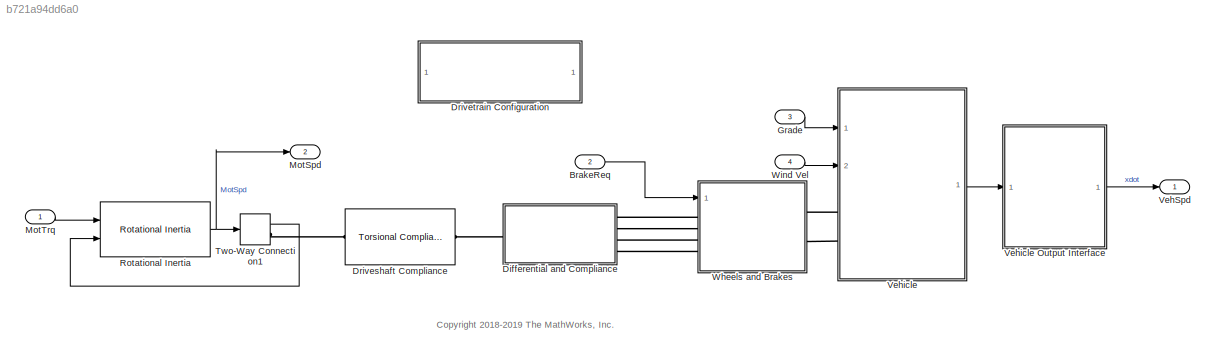
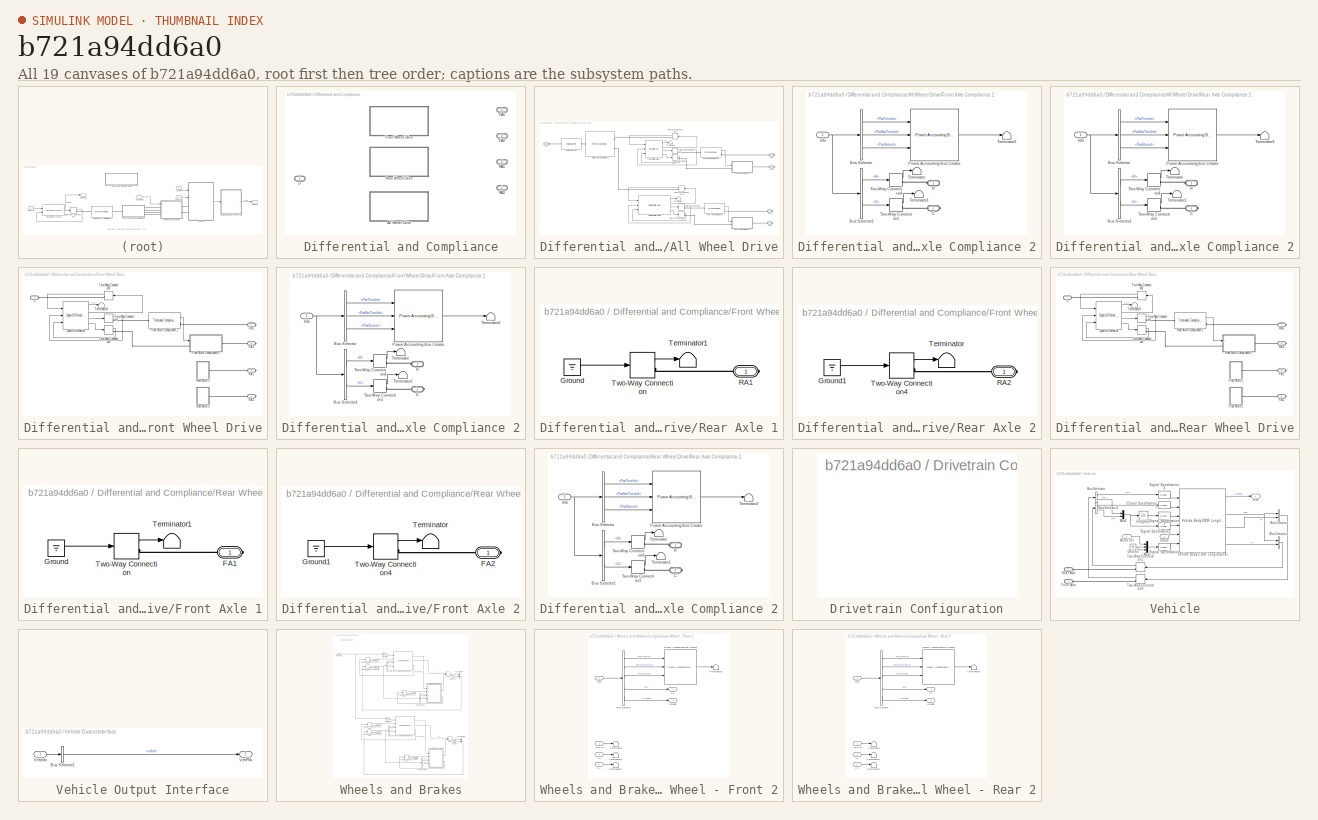
[diagram: thumbnail index - all 19 canvases of the model, root first then tree order]
MODEL slx_b721a94dd6a0
KIND model
CONFIG AbsTol = auto
CONFIG EnableMultiTasking = off
CONFIG FixedStep = auto
CONFIG MaxStep = auto
CONFIG MinStep = auto
CONFIG RelTol = 1e-3
CONFIG SampleTimeConstraint = Unconstrained
CONFIG Solver = VariableStepAuto
CONFIG SolverName = VariableStepAuto
CONFIG StartTime = 0.0
CONFIG StopTime = 10.0
WORKSPACE source: mxarray member
WORKSPACE Af = 2.27
WORKSPACE Bx = 10
WORKSPACE Cd = 0.28
WORKSPACE Cl = 0.1
WORKSPACE Cpm = 0.1
WORKSPACE Cx = 1.65
WORKSPACE Dx = 1
WORKSPACE Ex = 0.01
WORKSPACE FZMAX = 6570
WORKSPACE FZMIN = 0
WORKSPACE Fc = 500
WORKSPACE FsbF = [-700000 -7000 -700 0 700 7000 700000]
WORKSPACE FsbR = [-700000 -7000 -700 0 700 7000 700000]
WORKSPACE FskF = [-8928.57142857 -178.571428571 0 357.142857143 535.714285714 9285.71428571]
WORKSPACE FskR = [-5357.14285714 -107.142857143 0 214.285714286 321.428571429 5571.42857143]
WORKSPACE Iyy = 3000
WORKSPACE Iyy_Whl = 0.8
WORKSPACE J = 0.01
WORKSPACE Jd = 0.025
WORKSPACE Jmotor = 0.1
WORKSPACE Jw1 = 0.01
WORKSPACE Jw2 = 0.01
WORKSPACE Lrel = 0.15
WORKSPACE Mass = 1500
WORKSPACE NF = 2
WORKSPACE NR = 2
WORKSPACE Ndiff = 7.94
WORKSPACE Ndisks = 4
WORKSPACE Pabs = 101325
WORKSPACE Re = 0.327
WORKSPACE Reff_LSD = 0.2
WORKSPACE Rm = 0.15
WORKSPACE T = 273
WORKSPACE UNLOADED_RADIUS = 0.336
WORKSPACE VXLOW = 2
WORKSPACE aMy = 0.01
WORKSPACE a_CG = 1.188
WORKSPACE alphaMy = 0
WORKSPACE b: Simulink.Parameter (value not decoded)
WORKSPACE b1 = 100
WORKSPACE bMy = 0
WORKSPACE b_CG = 1.512
WORKSPACE b_J = 0.001
WORKSPACE bd = 0.001
WORKSPACE betaMy = 1
WORKSPACE br = 0.001
WORKSPACE bw1 = 0.001
WORKSPACE bw2 = 0.001
WORKSPACE cMy = 0
WORKSPACE disk_abore = 0.05
WORKSPACE domega_o = 0
WORKSPACE dw = [0 10 20 40 60 80 100]
WORKSPACE dzdotsF = [-10 -1 -0.1 0 0.1 1 10]
WORKSPACE dzdotsR = [-10 -1 -0.1 0 0.1 1 10]
WORKSPACE dzsF = [-0.005 -0.0001 0 0.2 0.2001 0.2051]
WORKSPACE dzsR = [-0.005 -0.0001 0 0.2 0.2001 0.2051]
WORKSPACE g = 9.81
WORKSPACE h = 0.5
WORKSPACE k: Simulink.Parameter (value not decoded)
WORKSPACE k1 = 50000
WORKSPACE kappamax = 1.5
WORKSPACE lam_x = 1
WORKSPACE mu_kinetic = 0.35
WORKSPACE mu_static = 0.45
WORKSPACE muc = [0.16 0.13 0.115 0.11 0.105 0.1025 0.10125]
WORKSPACE num_pads = 2
WORKSPACE omega1_c = 3000
WORKSPACE omega_c: Simulink.Parameter (value not decoded)
WORKSPACE omega_o = 0
WORKSPACE omega_o_J = 0
WORKSPACE omegao = 0
WORKSPACE omegaw1o = 0
WORKSPACE omegaw2o = 0
WORKSPACE press = 234400
WORKSPACE q_o = 0
WORKSPACE tauC_LSD = 0.01
WORKSPACE theta_o = 0
WORKSPACE theta_o_Veh = 0
WORKSPACE wc_shaft: Simulink.Parameter (value not decoded)
WORKSPACE x_o = 0
WORKSPACE xdot_o = 0
WORKSPACE z_o = -0.35
WORKSPACE zdot_o = 0
BLOCK [Inport] BrakeReq
  Port = 2
BLOCK [SubSystem] Differential and Compliance
  LabelModeActiveChoice = 0
  Ports = [0, 0, 0, 0, 0, 1, 4]
  RequestExecContextInheritance = off
  Variant = on
  VariantControlMode = Label
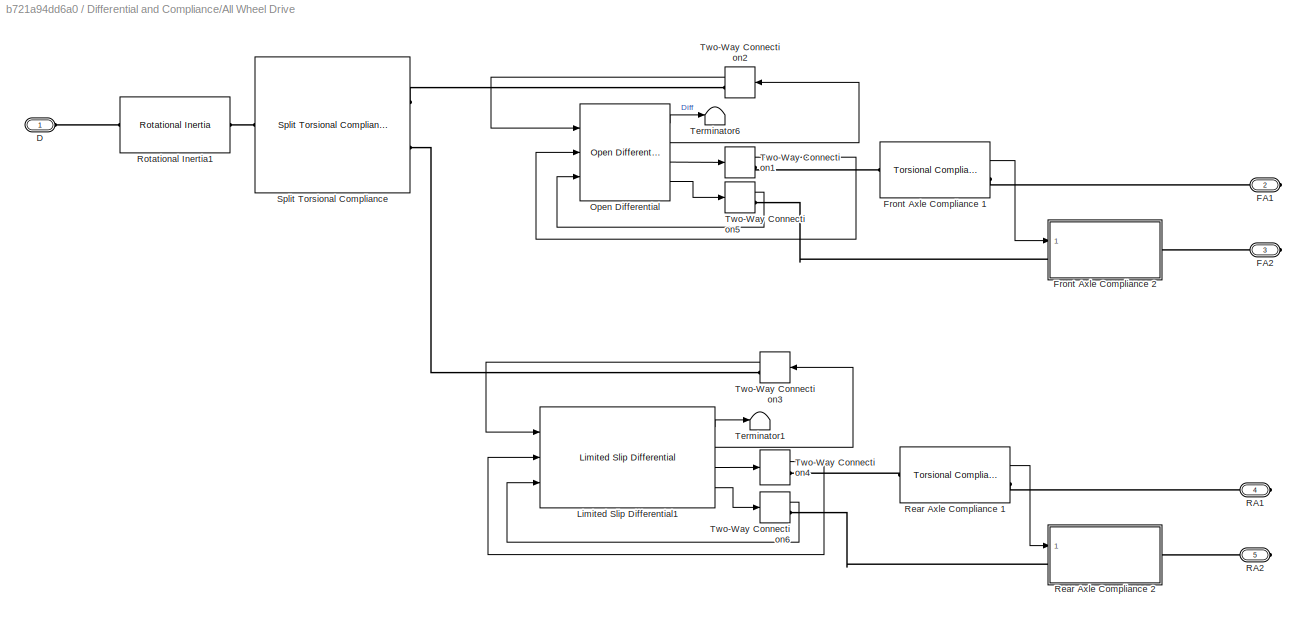
BLOCK [SubSystem] Differential and Compliance/All Wheel Drive
  Ports = [0, 0, 0, 0, 0, 1, 4]
  RequestExecContextInheritance = off
  VariantControl = 2
BLOCK [PMIOPort] Differential and Compliance/All Wheel Drive/D
  Side = Left
BLOCK [PMIOPort] Differential and Compliance/All Wheel Drive/FA1
  Port = 2
  Side = Right
BLOCK [PMIOPort] Differential and Compliance/All Wheel Drive/FA2
  Port = 3
  Side = Right
BLOCK [Reference] Differential and Compliance/All Wheel Drive/Front Axle Compliance 1  REF=autolibsharedcoupling/Torsional Compliance
  Ports = [0, 1, 0, 0, 0, 1, 1]
  SourceBlock = autolibsharedcoupling/Torsional Compliance
  SourceProductBaseCode = PW,MT,VE,VP
  SourceType = Torsional Compliance
BLOCK [SubSystem] Differential and Compliance/All Wheel Drive/Front Axle Compliance 2
  Ports = [1, 0, 0, 0, 0, 1, 1]
  RequestExecContextInheritance = off
BLOCK [BusSelector] Differential and Compliance/All Wheel Drive/Front Axle Compliance 2/Bus Selector
  OutputSignals = PwrInfo.PwrTrnsfrd,PwrInfo.PwrNotTrnsfrd,PwrInfo.PwrStored
  Ports = [1, 3]
BLOCK [BusSelector] Differential and Compliance/All Wheel Drive/Front Axle Compliance 2/Bus Selector1
  OutputSignals = Trq.R,Trq.C
  Ports = [1, 2]
BLOCK [PMIOPort] Differential and Compliance/All Wheel Drive/Front Axle Compliance 2/C
  Port = 2
  Side = Right
BLOCK [Inport] Differential and Compliance/All Wheel Drive/Front Axle Compliance 2/Info
BLOCK [Reference] Differential and Compliance/All Wheel Drive/Front Axle Compliance 2/Power Accounting Bus Creator  REF=autolibpowerinfoutils/Power Accounting Bus Creator
  Ports = [3, 1]
  SourceBlock = autolibpowerinfoutils/Power Accounting Bus Creator
  SourceProductBaseCode = PW,MT,VE,VP
  SourceType = Power Accounting Bus Creator
BLOCK [PMIOPort] Differential and Compliance/All Wheel Drive/Front Axle Compliance 2/R
  Side = Left
BLOCK [Terminator] Differential and Compliance/All Wheel Drive/Front Axle Compliance 2/Terminator
BLOCK [Terminator] Differential and Compliance/All Wheel Drive/Front Axle Compliance 2/Terminator1
BLOCK [Terminator] Differential and Compliance/All Wheel Drive/Front Axle Compliance 2/Terminator2
BLOCK [TwoWayConnection] Differential and Compliance/All Wheel Drive/Front Axle Compliance 2/Two-Way Connection1
  Ports = [1, 1, 0, 0, 0, 0, 1]
BLOCK [TwoWayConnection] Differential and Compliance/All Wheel Drive/Front Axle Compliance 2/Two-Way Connection4
  Ports = [1, 1, 0, 0, 0, 0, 1]
BLOCK [Reference] Differential and Compliance/All Wheel Drive/Limited Slip Differential1  REF=autolibshareddiff/Limited Slip Differential
  Ports = [3, 4]
  SourceBlock = autolibshareddiff/Limited Slip Differential
  SourceProductBaseCode = PW,MT,VE,VP
  SourceType = Limited Slip Differential
BLOCK [Reference] Differential and Compliance/All Wheel Drive/Open Differential  REF=autolibshareddiff/Open Differential
  Ports = [3, 4]
  SourceBlock = autolibshareddiff/Open Differential
  SourceProductBaseCode = PW,MT,VE,VP
  SourceType = Open Differential
BLOCK [PMIOPort] Differential and Compliance/All Wheel Drive/RA1
  Port = 4
  Side = Right
BLOCK [PMIOPort] Differential and Compliance/All Wheel Drive/RA2
  Port = 5
  Side = Right
BLOCK [Reference] Differential and Compliance/All Wheel Drive/Rear Axle Compliance 1  REF=autolibsharedcoupling/Torsional Compliance
  Ports = [0, 1, 0, 0, 0, 1, 1]
  SourceBlock = autolibsharedcoupling/Torsional Compliance
  SourceProductBaseCode = PW,MT,VE,VP
  SourceType = Torsional Compliance
BLOCK [SubSystem] Differential and Compliance/All Wheel Drive/Rear Axle Compliance 2
  Ports = [1, 0, 0, 0, 0, 1, 1]
  RequestExecContextInheritance = off
BLOCK [BusSelector] Differential and Compliance/All Wheel Drive/Rear Axle Compliance 2/Bus Selector
  OutputSignals = PwrInfo.PwrTrnsfrd,PwrInfo.PwrNotTrnsfrd,PwrInfo.PwrStored
  Ports = [1, 3]
BLOCK [BusSelector] Differential and Compliance/All Wheel Drive/Rear Axle Compliance 2/Bus Selector1
  OutputSignals = Trq.R,Trq.C
  Ports = [1, 2]
BLOCK [PMIOPort] Differential and Compliance/All Wheel Drive/Rear Axle Compliance 2/C
  Port = 2
  Side = Right
BLOCK [Inport] Differential and Compliance/All Wheel Drive/Rear Axle Compliance 2/Info
BLOCK [Reference] Differential and Compliance/All Wheel Drive/Rear Axle Compliance 2/Power Accounting Bus Creator  REF=autolibpowerinfoutils/Power Accounting Bus Creator
  Ports = [3, 1]
  SourceBlock = autolibpowerinfoutils/Power Accounting Bus Creator
  SourceProductBaseCode = PW,MT,VE,VP
  SourceType = Power Accounting Bus Creator
BLOCK [PMIOPort] Differential and Compliance/All Wheel Drive/Rear Axle Compliance 2/R
  Side = Left
BLOCK [Terminator] Differential and Compliance/All Wheel Drive/Rear Axle Compliance 2/Terminator
BLOCK [Terminator] Differential and Compliance/All Wheel Drive/Rear Axle Compliance 2/Terminator1
BLOCK [Terminator] Differential and Compliance/All Wheel Drive/Rear Axle Compliance 2/Terminator2
BLOCK [TwoWayConnection] Differential and Compliance/All Wheel Drive/Rear Axle Compliance 2/Two-Way Connection1
  Ports = [1, 1, 0, 0, 0, 0, 1]
BLOCK [TwoWayConnection] Differential and Compliance/All Wheel Drive/Rear Axle Compliance 2/Two-Way Connection4
  Ports = [1, 1, 0, 0, 0, 0, 1]
BLOCK [Reference] Differential and Compliance/All Wheel Drive/Rotational Inertia1  REF=autolibsharedcoupling/Rotational Inertia
  Ports = [0, 0, 0, 0, 0, 1, 1]
  SourceBlock = autolibsharedcoupling/Rotational Inertia
  SourceProductBaseCode = PW,MT,VE,VP
  SourceType = Rotational Inertia
BLOCK [Reference] Differential and Compliance/All Wheel Drive/Split Torsional Compliance  REF=autolibsharedcoupling/Split Torsional Compliance
  Ports = [0, 0, 0, 0, 0, 1, 2]
  SourceBlock = autolibsharedcoupling/Split Torsional Compliance
  SourceProductBaseCode = PW,MT,VE,VP
  SourceType = Split Torsional Compliance
BLOCK [Terminator] Differential and Compliance/All Wheel Drive/Terminator1
BLOCK [Terminator] Differential and Compliance/All Wheel Drive/Terminator6
BLOCK [TwoWayConnection] Differential and Compliance/All Wheel Drive/Two-Way Connection1
  Ports = [1, 1, 0, 0, 0, 0, 1]
BLOCK [TwoWayConnection] Differential and Compliance/All Wheel Drive/Two-Way Connection2
  Ports = [1, 1, 0, 0, 0, 0, 1]
BLOCK [TwoWayConnection] Differential and Compliance/All Wheel Drive/Two-Way Connection3
  Ports = [1, 1, 0, 0, 0, 0, 1]
BLOCK [TwoWayConnection] Differential and Compliance/All Wheel Drive/Two-Way Connection4
  NameLocation = top
  Ports = [1, 1, 0, 0, 0, 0, 1]
BLOCK [TwoWayConnection] Differential and Compliance/All Wheel Drive/Two-Way Connection5
  Ports = [1, 1, 0, 0, 0, 0, 1]
BLOCK [TwoWayConnection] Differential and Compliance/All Wheel Drive/Two-Way Connection6
  Ports = [1, 1, 0, 0, 0, 0, 1]
BLOCK [PMIOPort] Differential and Compliance/D
  Side = Left
BLOCK [PMIOPort] Differential and Compliance/FA1
  Port = 2
  Side = Right
BLOCK [PMIOPort] Differential and Compliance/FA2
  Port = 3
  Side = Right
BLOCK [SubSystem] Differential and Compliance/Front Wheel Drive
  Ports = [0, 0, 0, 0, 0, 1, 4]
  RequestExecContextInheritance = off
  VariantControl = 0
BLOCK [PMIOPort] Differential and Compliance/Front Wheel Drive/D
  Side = Left
BLOCK [PMIOPort] Differential and Compliance/Front Wheel Drive/FA1
  Port = 2
  Side = Right
BLOCK [PMIOPort] Differential and Compliance/Front Wheel Drive/FA2
  Port = 3
  Side = Right
BLOCK [Reference] Differential and Compliance/Front Wheel Drive/Front Axle Compliance 1  REF=autolibsharedcoupling/Torsional Compliance
  Ports = [0, 1, 0, 0, 0, 1, 1]
  SourceBlock = autolibsharedcoupling/Torsional Compliance
  SourceProductBaseCode = PW,MT,VE,VP
  SourceType = Torsional Compliance
BLOCK [SubSystem] Differential and Compliance/Front Wheel Drive/Front Axle Compliance 2
  Ports = [1, 0, 0, 0, 0, 1, 1]
  RequestExecContextInheritance = off
BLOCK [BusSelector] Differential and Compliance/Front Wheel Drive/Front Axle Compliance 2/Bus Selector
  OutputSignals = PwrInfo.PwrTrnsfrd,PwrInfo.PwrNotTrnsfrd,PwrInfo.PwrStored
  Ports = [1, 3]
BLOCK [BusSelector] Differential and Compliance/Front Wheel Drive/Front Axle Compliance 2/Bus Selector1
  OutputSignals = Trq.R,Trq.C
  Ports = [1, 2]
BLOCK [PMIOPort] Differential and Compliance/Front Wheel Drive/Front Axle Compliance 2/C
  Port = 2
  Side = Right
BLOCK [Inport] Differential and Compliance/Front Wheel Drive/Front Axle Compliance 2/Info
BLOCK [Reference] Differential and Compliance/Front Wheel Drive/Front Axle Compliance 2/Power Accounting Bus Creator  REF=autolibpowerinfoutils/Power Accounting Bus Creator
  Ports = [3, 1]
  SourceBlock = autolibpowerinfoutils/Power Accounting Bus Creator
  SourceProductBaseCode = PW,MT,VE,VP
  SourceType = Power Accounting Bus Creator
BLOCK [PMIOPort] Differential and Compliance/Front Wheel Drive/Front Axle Compliance 2/R
  Side = Left
BLOCK [Terminator] Differential and Compliance/Front Wheel Drive/Front Axle Compliance 2/Terminator
BLOCK [Terminator] Differential and Compliance/Front Wheel Drive/Front Axle Compliance 2/Terminator1
BLOCK [Terminator] Differential and Compliance/Front Wheel Drive/Front Axle Compliance 2/Terminator2
BLOCK [TwoWayConnection] Differential and Compliance/Front Wheel Drive/Front Axle Compliance 2/Two-Way Connection1
  Ports = [1, 1, 0, 0, 0, 0, 1]
BLOCK [TwoWayConnection] Differential and Compliance/Front Wheel Drive/Front Axle Compliance 2/Two-Way Connection4
  Ports = [1, 1, 0, 0, 0, 0, 1]
BLOCK [Reference] Differential and Compliance/Front Wheel Drive/Open Differential  REF=autolibshareddiff/Open Differential
  Ports = [3, 4]
  SourceBlock = autolibshareddiff/Open Differential
  SourceProductBaseCode = PW,MT,VE,VP
  SourceType = Open Differential
BLOCK [PMIOPort] Differential and Compliance/Front Wheel Drive/RA1
  Port = 4
  Side = Right
BLOCK [PMIOPort] Differential and Compliance/Front Wheel Drive/RA2
  Port = 5
  Side = Right
BLOCK [SubSystem] Differential and Compliance/Front Wheel Drive/Rear Axle 1
  Ports = [0, 0, 0, 0, 0, 0, 1]
  RequestExecContextInheritance = off
BLOCK [Ground] Differential and Compliance/Front Wheel Drive/Rear Axle 1/Ground
BLOCK [PMIOPort] Differential and Compliance/Front Wheel Drive/Rear Axle 1/RA1
  Side = Right
BLOCK [Terminator] Differential and Compliance/Front Wheel Drive/Rear Axle 1/Terminator1
BLOCK [TwoWayConnection] Differential and Compliance/Front Wheel Drive/Rear Axle 1/Two-Way Connection
  Ports = [1, 1, 0, 0, 0, 0, 1]
BLOCK [SubSystem] Differential and Compliance/Front Wheel Drive/Rear Axle 2
  Ports = [0, 0, 0, 0, 0, 0, 1]
  RequestExecContextInheritance = off
BLOCK [Ground] Differential and Compliance/Front Wheel Drive/Rear Axle 2/Ground1
BLOCK [PMIOPort] Differential and Compliance/Front Wheel Drive/Rear Axle 2/RA2
  Side = Right
BLOCK [Terminator] Differential and Compliance/Front Wheel Drive/Rear Axle 2/Terminator
BLOCK [TwoWayConnection] Differential and Compliance/Front Wheel Drive/Rear Axle 2/Two-Way Connection4
  Ports = [1, 1, 0, 0, 0, 0, 1]
BLOCK [Terminator] Differential and Compliance/Front Wheel Drive/Terminator6
BLOCK [TwoWayConnection] Differential and Compliance/Front Wheel Drive/Two-Way Connection1
  Ports = [1, 1, 0, 0, 0, 0, 1]
BLOCK [TwoWayConnection] Differential and Compliance/Front Wheel Drive/Two-Way Connection2
  Ports = [1, 1, 0, 0, 0, 0, 1]
BLOCK [TwoWayConnection] Differential and Compliance/Front Wheel Drive/Two-Way Connection3
  Ports = [1, 1, 0, 0, 0, 0, 1]
BLOCK [PMIOPort] Differential and Compliance/RA1
  Port = 4
  Side = Right
BLOCK [PMIOPort] Differential and Compliance/RA2
  Port = 5
  Side = Right
BLOCK [SubSystem] Differential and Compliance/Rear Wheel Drive
  Ports = [0, 0, 0, 0, 0, 1, 4]
  RequestExecContextInheritance = off
  VariantControl = 1
BLOCK [PMIOPort] Differential and Compliance/Rear Wheel Drive/D
  Side = Left
BLOCK [PMIOPort] Differential and Compliance/Rear Wheel Drive/FA1
  Port = 2
  Side = Right
BLOCK [PMIOPort] Differential and Compliance/Rear Wheel Drive/FA2
  Port = 3
  Side = Right
BLOCK [SubSystem] Differential and Compliance/Rear Wheel Drive/Front Axle 1
  Ports = [0, 0, 0, 0, 0, 0, 1]
  RequestExecContextInheritance = off
BLOCK [PMIOPort] Differential and Compliance/Rear Wheel Drive/Front Axle 1/FA1
  Side = Right
BLOCK [Ground] Differential and Compliance/Rear Wheel Drive/Front Axle 1/Ground
BLOCK [Terminator] Differential and Compliance/Rear Wheel Drive/Front Axle 1/Terminator1
BLOCK [TwoWayConnection] Differential and Compliance/Rear Wheel Drive/Front Axle 1/Two-Way Connection
  Ports = [1, 1, 0, 0, 0, 0, 1]
BLOCK [SubSystem] Differential and Compliance/Rear Wheel Drive/Front Axle 2
  Ports = [0, 0, 0, 0, 0, 0, 1]
  RequestExecContextInheritance = off
BLOCK [PMIOPort] Differential and Compliance/Rear Wheel Drive/Front Axle 2/FA2
  Side = Right
BLOCK [Ground] Differential and Compliance/Rear Wheel Drive/Front Axle 2/Ground1
BLOCK [Terminator] Differential and Compliance/Rear Wheel Drive/Front Axle 2/Terminator
BLOCK [TwoWayConnection] Differential and Compliance/Rear Wheel Drive/Front Axle 2/Two-Way Connection4
  Ports = [1, 1, 0, 0, 0, 0, 1]
BLOCK [Reference] Differential and Compliance/Rear Wheel Drive/Open Differential  REF=autolibshareddiff/Open Differential
  Ports = [3, 4]
  SourceBlock = autolibshareddiff/Open Differential
  SourceProductBaseCode = PW,MT,VE,VP
  SourceType = Open Differential
BLOCK [PMIOPort] Differential and Compliance/Rear Wheel Drive/RA1
  Port = 4
  Side = Right
BLOCK [PMIOPort] Differential and Compliance/Rear Wheel Drive/RA2
  Port = 5
  Side = Right
BLOCK [Reference] Differential and Compliance/Rear Wheel Drive/Rear Axle Compliance 1  REF=autolibsharedcoupling/Torsional Compliance
  Ports = [0, 1, 0, 0, 0, 1, 1]
  SourceBlock = autolibsharedcoupling/Torsional Compliance
  SourceProductBaseCode = PW,MT,VE,VP
  SourceType = Torsional Compliance
BLOCK [SubSystem] Differential and Compliance/Rear Wheel Drive/Rear Axle Compliance 2
  Ports = [1, 0, 0, 0, 0, 1, 1]
  RequestExecContextInheritance = off
BLOCK [BusSelector] Differential and Compliance/Rear Wheel Drive/Rear Axle Compliance 2/Bus Selector
  OutputSignals = PwrInfo.PwrTrnsfrd,PwrInfo.PwrNotTrnsfrd,PwrInfo.PwrStored
  Ports = [1, 3]
BLOCK [BusSelector] Differential and Compliance/Rear Wheel Drive/Rear Axle Compliance 2/Bus Selector1
  OutputSignals = Trq.R,Trq.C
  Ports = [1, 2]
BLOCK [PMIOPort] Differential and Compliance/Rear Wheel Drive/Rear Axle Compliance 2/C
  Port = 2
  Side = Right
BLOCK [Inport] Differential and Compliance/Rear Wheel Drive/Rear Axle Compliance 2/Info
BLOCK [Reference] Differential and Compliance/Rear Wheel Drive/Rear Axle Compliance 2/Power Accounting Bus Creator  REF=autolibpowerinfoutils/Power Accounting Bus Creator
  Ports = [3, 1]
  SourceBlock = autolibpowerinfoutils/Power Accounting Bus Creator
  SourceProductBaseCode = PW,MT,VE,VP
  SourceType = Power Accounting Bus Creator
BLOCK [PMIOPort] Differential and Compliance/Rear Wheel Drive/Rear Axle Compliance 2/R
  Side = Left
BLOCK [Terminator] Differential and Compliance/Rear Wheel Drive/Rear Axle Compliance 2/Terminator
BLOCK [Terminator] Differential and Compliance/Rear Wheel Drive/Rear Axle Compliance 2/Terminator1
BLOCK [Terminator] Differential and Compliance/Rear Wheel Drive/Rear Axle Compliance 2/Terminator2
BLOCK [TwoWayConnection] Differential and Compliance/Rear Wheel Drive/Rear Axle Compliance 2/Two-Way Connection1
  Ports = [1, 1, 0, 0, 0, 0, 1]
BLOCK [TwoWayConnection] Differential and Compliance/Rear Wheel Drive/Rear Axle Compliance 2/Two-Way Connection4
  Ports = [1, 1, 0, 0, 0, 0, 1]
BLOCK [Terminator] Differential and Compliance/Rear Wheel Drive/Terminator6
BLOCK [TwoWayConnection] Differential and Compliance/Rear Wheel Drive/Two-Way Connection1
  Ports = [1, 1, 0, 0, 0, 0, 1]
BLOCK [TwoWayConnection] Differential and Compliance/Rear Wheel Drive/Two-Way Connection2
  Ports = [1, 1, 0, 0, 0, 0, 1]
BLOCK [TwoWayConnection] Differential and Compliance/Rear Wheel Drive/Two-Way Connection3
  Ports = [1, 1, 0, 0, 0, 0, 1]
BLOCK [Reference] Driveshaft Compliance  REF=autolibsharedcoupling/Torsional Compliance
  Ports = [0, 0, 0, 0, 0, 1, 1]
  SourceBlock = autolibsharedcoupling/Torsional Compliance
  SourceProductBaseCode = PW,MT,VE,VP
  SourceType = Torsional Compliance
BLOCK [SubSystem] Drivetrain Configuration
  AttributesFormatString = Active Mode: %<drivetrainMode>
  Ports = []
  RequestExecContextInheritance = off
BLOCK [Inport] Grade
  Port = 3
BLOCK [Outport] MotSpd
  BusOutputAsStruct = on
  Port = 2
  SignalType = real
  VarSizeSig = No
  VectorParamsAs1DForOutWhenUnconnected = off
BLOCK [Inport] MotTrq
BLOCK [Reference] Rotational Inertia  REF=autolibsharedcoupling/Rotational Inertia
  Ports = [2, 1]
  SourceBlock = autolibsharedcoupling/Rotational Inertia
  SourceProductBaseCode = PW,MT,VE,VP
  SourceType = Rotational Inertia
BLOCK [TwoWayConnection] Two-Way Connection1
  NameLocation = top
  Ports = [1, 1, 0, 0, 0, 0, 1]
BLOCK [Outport] VehSpd
  VectorParamsAs1DForOutWhenUnconnected = off
BLOCK [SubSystem] Vehicle
  Ports = [2, 1, 0, 0, 0, 2]
  RequestExecContextInheritance = off
BLOCK [SubSystem] Vehicle Output Interface
  Ports = [1, 1]
  RequestExecContextInheritance = off
BLOCK [BusSelector] Vehicle Output Interface/Bus Selector1
  OutputSignals = BdyFrm.Cg.Vel.xdot
  Ports = [1, 1]
BLOCK [Outport] Vehicle Output Interface/VehFbk
  VectorParamsAs1DForOutWhenUnconnected = off
BLOCK [Inport] Vehicle Output Interface/VehInfo
BLOCK [BusCreator] Vehicle/Bus Creator
  DisplayOption = bar
  InheritFromInputs = on
  Inputs = 2
  Ports = [2, 1]
BLOCK [BusCreator] Vehicle/Bus Creator1
  DisplayOption = bar
  InheritFromInputs = on
  Inputs = 2
  Ports = [2, 1]
BLOCK [BusSelector] Vehicle/Bus Selector
  OutputSignals = Fx,Fz
  Ports = [1, 2]
BLOCK [BusSelector] Vehicle/Bus Selector2
  OutputSignals = Fx,Fz
  Ports = [1, 2]
BLOCK [PMIOPort] Vehicle/Front Axle
  Side = Left
BLOCK [Inport] Vehicle/Grade
  Unit = deg
BLOCK [Ground] Vehicle/Ground
BLOCK [Outport] Vehicle/Info
  VectorParamsAs1DForOutWhenUnconnected = off
BLOCK [Integrator] Vehicle/Integrator
  Ports = [1, 1]
BLOCK [Mux] Vehicle/Mux1
  DisplayOption = bar
  Inputs = 3
  Ports = [3, 1]
BLOCK [Mux] Vehicle/Mux2
  DisplayOption = bar
  Inputs = 2
  Ports = [2, 1]
BLOCK [PMIOPort] Vehicle/Rear Axle
  Port = 2
  Side = Left
BLOCK [SignalSpecification] Vehicle/Signal Specification
  Unit = m/s
BLOCK [SignalSpecification] Vehicle/Signal Specification1
  Unit = m
BLOCK [SignalSpecification] Vehicle/Signal Specification2
  Unit = m/s
BLOCK [SignalSpecification] Vehicle/Signal Specification3
  Unit = N
BLOCK [SignalSpecification] Vehicle/Signal Specification4
  Unit = N
BLOCK [TwoWayConnection] Vehicle/Two-Way Connection1
  Ports = [1, 1, 0, 0, 0, 0, 1]
BLOCK [TwoWayConnection] Vehicle/Two-Way Connection8
  Ports = [1, 1, 0, 0, 0, 0, 1]
BLOCK [Reference] Vehicle/Vehicle Body 3 DOF Longitudinal  REF=autolibshared/Vehicle Body 3DOF Longitudinal
  Ports = [6, 4]
  SourceBlock = autolibshared/Vehicle Body 3DOF Longitudinal
  SourceProductBaseCode = PW,MT,VE,VP
  SourceType = Vehicle Body 3DOF Longitudinal
BLOCK [Inport] Vehicle/Wind Vel
  Port = 2
  Unit = m/s
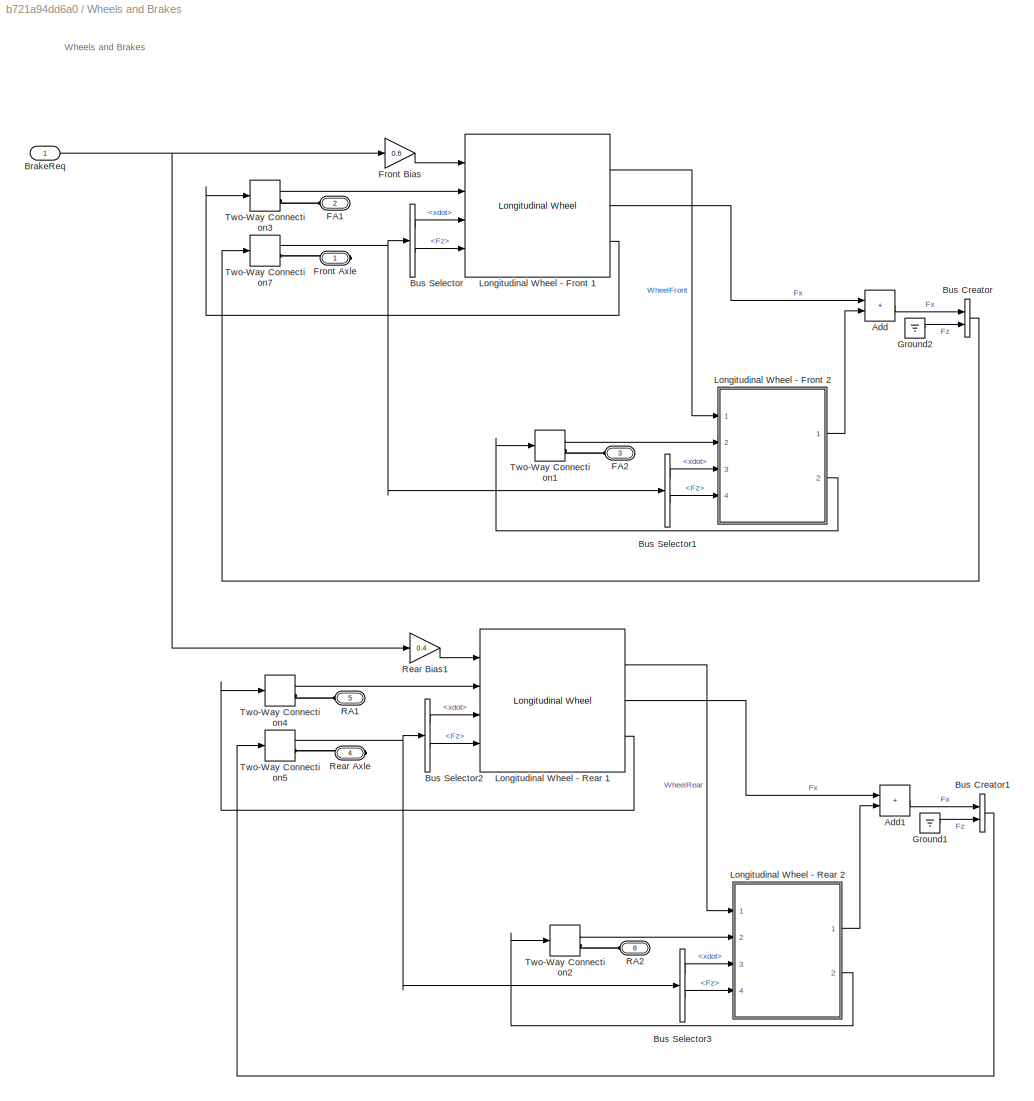
BLOCK [SubSystem] Wheels and Brakes
  Ports = [1, 0, 0, 0, 0, 4, 2]
  RequestExecContextInheritance = off
  VariantControl = 0
BLOCK [Sum] Wheels and Brakes/Add
  IconShape = rectangular
  Ports = [2, 1]
BLOCK [Sum] Wheels and Brakes/Add1
  IconShape = rectangular
  Ports = [2, 1]
BLOCK [Inport] Wheels and Brakes/BrakeReq
BLOCK [BusCreator] Wheels and Brakes/Bus Creator
  DisplayOption = bar
  InheritFromInputs = on
  Inputs = 2
  Ports = [2, 1]
BLOCK [BusCreator] Wheels and Brakes/Bus Creator1
  DisplayOption = bar
  InheritFromInputs = on
  Inputs = 2
  Ports = [2, 1]
BLOCK [BusSelector] Wheels and Brakes/Bus Selector
  OutputSignals = xdot,Fz
  Ports = [1, 2]
BLOCK [BusSelector] Wheels and Brakes/Bus Selector1
  OutputSignals = xdot,Fz
  Ports = [1, 2]
BLOCK [BusSelector] Wheels and Brakes/Bus Selector2
  OutputSignals = xdot,Fz
  Ports = [1, 2]
BLOCK [BusSelector] Wheels and Brakes/Bus Selector3
  OutputSignals = xdot,Fz
  Ports = [1, 2]
BLOCK [PMIOPort] Wheels and Brakes/FA1
  Port = 2
  Side = Left
BLOCK [PMIOPort] Wheels and Brakes/FA2
  Port = 3
  Side = Left
BLOCK [PMIOPort] Wheels and Brakes/Front Axle
  Side = Right
BLOCK [Gain] Wheels and Brakes/Front Bias
  Gain = 0.6
BLOCK [Ground] Wheels and Brakes/Ground1
BLOCK [Ground] Wheels and Brakes/Ground2
BLOCK [Reference] Wheels and Brakes/Longitudinal Wheel - Front 1  REF=autolibshared/Longitudinal Wheel
  AttributesFormatString = Brake Type: %<BrakeType>
  Ports = [4, 3]
  SourceBlock = autolibshared/Longitudinal Wheel
  SourceProductBaseCode = PW,MT,VE,VP
  SourceType = Longitudinal Wheel
BLOCK [SubSystem] Wheels and Brakes/Longitudinal Wheel - Front 2
  Ports = [4, 2]
  RequestExecContextInheritance = off
BLOCK [Inport] Wheels and Brakes/Longitudinal Wheel - Front 2/AxlTrq
  Port = 2
BLOCK [BusSelector] Wheels and Brakes/Longitudinal Wheel - Front 2/Bus Selector
  OutputSignals = PwrInfo.PwrTrnsfrd,PwrInfo.PwrNotTrnsfrd,PwrInfo.PwrStored,Fx,Omega
  Ports = [1, 5]
BLOCK [Outport] Wheels and Brakes/Longitudinal Wheel - Front 2/Fx
  VectorParamsAs1DForOutWhenUnconnected = off
BLOCK [Inport] Wheels and Brakes/Longitudinal Wheel - Front 2/Fz
  Port = 4
BLOCK [Inport] Wheels and Brakes/Longitudinal Wheel - Front 2/Info
BLOCK [Outport] Wheels and Brakes/Longitudinal Wheel - Front 2/Omega
  Port = 2
  VectorParamsAs1DForOutWhenUnconnected = off
BLOCK [Reference] Wheels and Brakes/Longitudinal Wheel - Front 2/Power Accounting Bus Creator  REF=autolibpowerinfoutils/Power Accounting Bus Creator
  Ports = [3, 1]
  SourceBlock = autolibpowerinfoutils/Power Accounting Bus Creator
  SourceProductBaseCode = PW,MT,VE,VP
  SourceType = Power Accounting Bus Creator
BLOCK [Terminator] Wheels and Brakes/Longitudinal Wheel - Front 2/Terminator
BLOCK [Terminator] Wheels and Brakes/Longitudinal Wheel - Front 2/Terminator1
BLOCK [Terminator] Wheels and Brakes/Longitudinal Wheel - Front 2/Terminator2
BLOCK [Terminator] Wheels and Brakes/Longitudinal Wheel - Front 2/Terminator3
BLOCK [Inport] Wheels and Brakes/Longitudinal Wheel - Front 2/Vx
  Port = 3
BLOCK [Reference] Wheels and Brakes/Longitudinal Wheel - Rear 1  REF=autolibshared/Longitudinal Wheel
  AttributesFormatString = Brake Type: %<BrakeType>
  Ports = [4, 3]
  SourceBlock = autolibshared/Longitudinal Wheel
  SourceProductBaseCode = PW,MT,VE,VP
  SourceType = Longitudinal Wheel
BLOCK [SubSystem] Wheels and Brakes/Longitudinal Wheel - Rear 2
  Ports = [4, 2]
  RequestExecContextInheritance = off
BLOCK [Inport] Wheels and Brakes/Longitudinal Wheel - Rear 2/AxlTrq
  Port = 2
BLOCK [BusSelector] Wheels and Brakes/Longitudinal Wheel - Rear 2/Bus Selector
  OutputSignals = PwrInfo.PwrTrnsfrd,PwrInfo.PwrNotTrnsfrd,PwrInfo.PwrStored,Fx,Omega
  Ports = [1, 5]
BLOCK [Outport] Wheels and Brakes/Longitudinal Wheel - Rear 2/Fx
  VectorParamsAs1DForOutWhenUnconnected = off
BLOCK [Inport] Wheels and Brakes/Longitudinal Wheel - Rear 2/Fz
  Port = 4
BLOCK [Inport] Wheels and Brakes/Longitudinal Wheel - Rear 2/Info
BLOCK [Outport] Wheels and Brakes/Longitudinal Wheel - Rear 2/Omega
  Port = 2
  VectorParamsAs1DForOutWhenUnconnected = off
BLOCK [Reference] Wheels and Brakes/Longitudinal Wheel - Rear 2/Power Accounting Bus Creator  REF=autolibpowerinfoutils/Power Accounting Bus Creator
  Ports = [3, 1]
  SourceBlock = autolibpowerinfoutils/Power Accounting Bus Creator
  SourceProductBaseCode = PW,MT,VE,VP
  SourceType = Power Accounting Bus Creator
BLOCK [Terminator] Wheels and Brakes/Longitudinal Wheel - Rear 2/Terminator
BLOCK [Terminator] Wheels and Brakes/Longitudinal Wheel - Rear 2/Terminator1
BLOCK [Terminator] Wheels and Brakes/Longitudinal Wheel - Rear 2/Terminator2
BLOCK [Terminator] Wheels and Brakes/Longitudinal Wheel - Rear 2/Terminator3
BLOCK [Inport] Wheels and Brakes/Longitudinal Wheel - Rear 2/Vx
  Port = 3
BLOCK [PMIOPort] Wheels and Brakes/RA1
  Port = 5
  Side = Left
BLOCK [PMIOPort] Wheels and Brakes/RA2
  Port = 6
  Side = Left
BLOCK [PMIOPort] Wheels and Brakes/Rear Axle
  Port = 4
  Side = Right
BLOCK [Gain] Wheels and Brakes/Rear Bias1
  Gain = 0.4
BLOCK [TwoWayConnection] Wheels and Brakes/Two-Way Connection1
  Ports = [1, 1, 0, 0, 0, 0, 1]
BLOCK [TwoWayConnection] Wheels and Brakes/Two-Way Connection2
  Ports = [1, 1, 0, 0, 0, 0, 1]
BLOCK [TwoWayConnection] Wheels and Brakes/Two-Way Connection3
  Ports = [1, 1, 0, 0, 0, 0, 1]
BLOCK [TwoWayConnection] Wheels and Brakes/Two-Way Connection4
  Ports = [1, 1, 0, 0, 0, 0, 1]
BLOCK [TwoWayConnection] Wheels and Brakes/Two-Way Connection5
  Ports = [1, 1, 0, 0, 0, 0, 1]
BLOCK [TwoWayConnection] Wheels and Brakes/Two-Way Connection7
  Ports = [1, 1, 0, 0, 0, 0, 1]
BLOCK [Inport] Wind Vel
  Port = 4
ANNOTATION (root): <copyright redacted>
ANNOTATION Wheels and Brakes: Wheels and Brakes
LINE BrakeReq:1 -> Wheels and Brakes:1
LINE Differential and Compliance/All Wheel Drive/Front Axle Compliance 1:1 -> Differential and Compliance/All Wheel Drive/Front Axle Compliance 2:1
LINE Differential and Compliance/All Wheel Drive/Front Axle Compliance 2/Bus Selector1:1 -> Differential and Compliance/All Wheel Drive/Front Axle Compliance 2/Two-Way Connection4:1
LINE Differential and Compliance/All Wheel Drive/Front Axle Compliance 2/Bus Selector1:2 -> Differential and Compliance/All Wheel Drive/Front Axle Compliance 2/Two-Way Connection1:1
LINE Differential and Compliance/All Wheel Drive/Front Axle Compliance 2/Bus Selector:1 -> Differential and Compliance/All Wheel Drive/Front Axle Compliance 2/Power Accounting Bus Creator:1
LINE Differential and Compliance/All Wheel Drive/Front Axle Compliance 2/Bus Selector:2 -> Differential and Compliance/All Wheel Drive/Front Axle Compliance 2/Power Accounting Bus Creator:2
LINE Differential and Compliance/All Wheel Drive/Front Axle Compliance 2/Bus Selector:3 -> Differential and Compliance/All Wheel Drive/Front Axle Compliance 2/Power Accounting Bus Creator:3
NET Differential and Compliance/All Wheel Drive/Front Axle Compliance 2/Info:1 -> Differential and Compliance/All Wheel Drive/Front Axle Compliance 2/Bus Selector1:1, Differential and Compliance/All Wheel Drive/Front Axle Compliance 2/Bus Selector:1
LINE Differential and Compliance/All Wheel Drive/Front Axle Compliance 2/Power Accounting Bus Creator:1 -> Differential and Compliance/All Wheel Drive/Front Axle Compliance 2/Terminator2:1
LINE Differential and Compliance/All Wheel Drive/Front Axle Compliance 2/Two-Way Connection1:1 -> Differential and Compliance/All Wheel Drive/Front Axle Compliance 2/Terminator1:1
LINE Differential and Compliance/All Wheel Drive/Front Axle Compliance 2/Two-Way Connection4:1 -> Differential and Compliance/All Wheel Drive/Front Axle Compliance 2/Terminator:1
LINE Differential and Compliance/All Wheel Drive/Limited Slip Differential1:1 -> Differential and Compliance/All Wheel Drive/Terminator1:1
LINE Differential and Compliance/All Wheel Drive/Limited Slip Differential1:2 -> Differential and Compliance/All Wheel Drive/Two-Way Connection3:1
LINE Differential and Compliance/All Wheel Drive/Limited Slip Differential1:3 -> Differential and Compliance/All Wheel Drive/Two-Way Connection4:1
LINE Differential and Compliance/All Wheel Drive/Limited Slip Differential1:4 -> Differential and Compliance/All Wheel Drive/Two-Way Connection6:1
LINE Differential and Compliance/All Wheel Drive/Open Differential:1 -> Differential and Compliance/All Wheel Drive/Terminator6:1
LINE Differential and Compliance/All Wheel Drive/Open Differential:2 -> Differential and Compliance/All Wheel Drive/Two-Way Connection2:1
LINE Differential and Compliance/All Wheel Drive/Open Differential:3 -> Differential and Compliance/All Wheel Drive/Two-Way Connection1:1
LINE Differential and Compliance/All Wheel Drive/Open Differential:4 -> Differential and Compliance/All Wheel Drive/Two-Way Connection5:1
LINE Differential and Compliance/All Wheel Drive/Rear Axle Compliance 1:1 -> Differential and Compliance/All Wheel Drive/Rear Axle Compliance 2:1
LINE Differential and Compliance/All Wheel Drive/Rear Axle Compliance 2/Bus Selector1:1 -> Differential and Compliance/All Wheel Drive/Rear Axle Compliance 2/Two-Way Connection4:1
LINE Differential and Compliance/All Wheel Drive/Rear Axle Compliance 2/Bus Selector1:2 -> Differential and Compliance/All Wheel Drive/Rear Axle Compliance 2/Two-Way Connection1:1
LINE Differential and Compliance/All Wheel Drive/Rear Axle Compliance 2/Bus Selector:1 -> Differential and Compliance/All Wheel Drive/Rear Axle Compliance 2/Power Accounting Bus Creator:1
LINE Differential and Compliance/All Wheel Drive/Rear Axle Compliance 2/Bus Selector:2 -> Differential and Compliance/All Wheel Drive/Rear Axle Compliance 2/Power Accounting Bus Creator:2
LINE Differential and Compliance/All Wheel Drive/Rear Axle Compliance 2/Bus Selector:3 -> Differential and Compliance/All Wheel Drive/Rear Axle Compliance 2/Power Accounting Bus Creator:3
NET Differential and Compliance/All Wheel Drive/Rear Axle Compliance 2/Info:1 -> Differential and Compliance/All Wheel Drive/Rear Axle Compliance 2/Bus Selector1:1, Differential and Compliance/All Wheel Drive/Rear Axle Compliance 2/Bus Selector:1
LINE Differential and Compliance/All Wheel Drive/Rear Axle Compliance 2/Power Accounting Bus Creator:1 -> Differential and Compliance/All Wheel Drive/Rear Axle Compliance 2/Terminator2:1
LINE Differential and Compliance/All Wheel Drive/Rear Axle Compliance 2/Two-Way Connection1:1 -> Differential and Compliance/All Wheel Drive/Rear Axle Compliance 2/Terminator1:1
LINE Differential and Compliance/All Wheel Drive/Rear Axle Compliance 2/Two-Way Connection4:1 -> Differential and Compliance/All Wheel Drive/Rear Axle Compliance 2/Terminator:1
LINE Differential and Compliance/All Wheel Drive/Two-Way Connection1:1 -> Differential and Compliance/All Wheel Drive/Open Differential:2
LINE Differential and Compliance/All Wheel Drive/Two-Way Connection2:1 -> Differential and Compliance/All Wheel Drive/Open Differential:1
LINE Differential and Compliance/All Wheel Drive/Two-Way Connection3:1 -> Differential and Compliance/All Wheel Drive/Limited Slip Differential1:1
LINE Differential and Compliance/All Wheel Drive/Two-Way Connection4:1 -> Differential and Compliance/All Wheel Drive/Limited Slip Differential1:2
LINE Differential and Compliance/All Wheel Drive/Two-Way Connection5:1 -> Differential and Compliance/All Wheel Drive/Open Differential:3
LINE Differential and Compliance/All Wheel Drive/Two-Way Connection6:1 -> Differential and Compliance/All Wheel Drive/Limited Slip Differential1:3
LINE Differential and Compliance/Front Wheel Drive/Front Axle Compliance 1:1 -> Differential and Compliance/Front Wheel Drive/Front Axle Compliance 2:1
LINE Differential and Compliance/Front Wheel Drive/Front Axle Compliance 2/Bus Selector1:1 -> Differential and Compliance/Front Wheel Drive/Front Axle Compliance 2/Two-Way Connection4:1
LINE Differential and Compliance/Front Wheel Drive/Front Axle Compliance 2/Bus Selector1:2 -> Differential and Compliance/Front Wheel Drive/Front Axle Compliance 2/Two-Way Connection1:1
LINE Differential and Compliance/Front Wheel Drive/Front Axle Compliance 2/Bus Selector:1 -> Differential and Compliance/Front Wheel Drive/Front Axle Compliance 2/Power Accounting Bus Creator:1
LINE Differential and Compliance/Front Wheel Drive/Front Axle Compliance 2/Bus Selector:2 -> Differential and Compliance/Front Wheel Drive/Front Axle Compliance 2/Power Accounting Bus Creator:2
LINE Differential and Compliance/Front Wheel Drive/Front Axle Compliance 2/Bus Selector:3 -> Differential and Compliance/Front Wheel Drive/Front Axle Compliance 2/Power Accounting Bus Creator:3
NET Differential and Compliance/Front Wheel Drive/Front Axle Compliance 2/Info:1 -> Differential and Compliance/Front Wheel Drive/Front Axle Compliance 2/Bus Selector1:1, Differential and Compliance/Front Wheel Drive/Front Axle Compliance 2/Bus Selector:1
LINE Differential and Compliance/Front Wheel Drive/Front Axle Compliance 2/Power Accounting Bus Creator:1 -> Differential and Compliance/Front Wheel Drive/Front Axle Compliance 2/Terminator2:1
LINE Differential and Compliance/Front Wheel Drive/Front Axle Compliance 2/Two-Way Connection1:1 -> Differential and Compliance/Front Wheel Drive/Front Axle Compliance 2/Terminator1:1
LINE Differential and Compliance/Front Wheel Drive/Front Axle Compliance 2/Two-Way Connection4:1 -> Differential and Compliance/Front Wheel Drive/Front Axle Compliance 2/Terminator:1
LINE Differential and Compliance/Front Wheel Drive/Open Differential:1 -> Differential and Compliance/Front Wheel Drive/Terminator6:1
LINE Differential and Compliance/Front Wheel Drive/Open Differential:2 -> Differential and Compliance/Front Wheel Drive/Two-Way Connection2:1
LINE Differential and Compliance/Front Wheel Drive/Open Differential:3 -> Differential and Compliance/Front Wheel Drive/Two-Way Connection1:1
LINE Differential and Compliance/Front Wheel Drive/Open Differential:4 -> Differential and Compliance/Front Wheel Drive/Two-Way Connection3:1
LINE Differential and Compliance/Front Wheel Drive/Rear Axle 1/Ground:1 -> Differential and Compliance/Front Wheel Drive/Rear Axle 1/Two-Way Connection:1
LINE Differential and Compliance/Front Wheel Drive/Rear Axle 1/Two-Way Connection:1 -> Differential and Compliance/Front Wheel Drive/Rear Axle 1/Terminator1:1
LINE Differential and Compliance/Front Wheel Drive/Rear Axle 2/Ground1:1 -> Differential and Compliance/Front Wheel Drive/Rear Axle 2/Two-Way Connection4:1
LINE Differential and Compliance/Front Wheel Drive/Rear Axle 2/Two-Way Connection4:1 -> Differential and Compliance/Front Wheel Drive/Rear Axle 2/Terminator:1
LINE Differential and Compliance/Front Wheel Drive/Two-Way Connection1:1 -> Differential and Compliance/Front Wheel Drive/Open Differential:2
LINE Differential and Compliance/Front Wheel Drive/Two-Way Connection2:1 -> Differential and Compliance/Front Wheel Drive/Open Differential:1
LINE Differential and Compliance/Front Wheel Drive/Two-Way Connection3:1 -> Differential and Compliance/Front Wheel Drive/Open Differential:3
LINE Differential and Compliance/Rear Wheel Drive/Front Axle 1/Ground:1 -> Differential and Compliance/Rear Wheel Drive/Front Axle 1/Two-Way Connection:1
LINE Differential and Compliance/Rear Wheel Drive/Front Axle 1/Two-Way Connection:1 -> Differential and Compliance/Rear Wheel Drive/Front Axle 1/Terminator1:1
LINE Differential and Compliance/Rear Wheel Drive/Front Axle 2/Ground1:1 -> Differential and Compliance/Rear Wheel Drive/Front Axle 2/Two-Way Connection4:1
LINE Differential and Compliance/Rear Wheel Drive/Front Axle 2/Two-Way Connection4:1 -> Differential and Compliance/Rear Wheel Drive/Front Axle 2/Terminator:1
LINE Differential and Compliance/Rear Wheel Drive/Open Differential:1 -> Differential and Compliance/Rear Wheel Drive/Terminator6:1
LINE Differential and Compliance/Rear Wheel Drive/Open Differential:2 -> Differential and Compliance/Rear Wheel Drive/Two-Way Connection2:1
LINE Differential and Compliance/Rear Wheel Drive/Open Differential:3 -> Differential and Compliance/Rear Wheel Drive/Two-Way Connection1:1
LINE Differential and Compliance/Rear Wheel Drive/Open Differential:4 -> Differential and Compliance/Rear Wheel Drive/Two-Way Connection3:1
LINE Differential and Compliance/Rear Wheel Drive/Rear Axle Compliance 1:1 -> Differential and Compliance/Rear Wheel Drive/Rear Axle Compliance 2:1
LINE Differential and Compliance/Rear Wheel Drive/Rear Axle Compliance 2/Bus Selector1:1 -> Differential and Compliance/Rear Wheel Drive/Rear Axle Compliance 2/Two-Way Connection4:1
LINE Differential and Compliance/Rear Wheel Drive/Rear Axle Compliance 2/Bus Selector1:2 -> Differential and Compliance/Rear Wheel Drive/Rear Axle Compliance 2/Two-Way Connection1:1
LINE Differential and Compliance/Rear Wheel Drive/Rear Axle Compliance 2/Bus Selector:1 -> Differential and Compliance/Rear Wheel Drive/Rear Axle Compliance 2/Power Accounting Bus Creator:1
LINE Differential and Compliance/Rear Wheel Drive/Rear Axle Compliance 2/Bus Selector:2 -> Differential and Compliance/Rear Wheel Drive/Rear Axle Compliance 2/Power Accounting Bus Creator:2
LINE Differential and Compliance/Rear Wheel Drive/Rear Axle Compliance 2/Bus Selector:3 -> Differential and Compliance/Rear Wheel Drive/Rear Axle Compliance 2/Power Accounting Bus Creator:3
NET Differential and Compliance/Rear Wheel Drive/Rear Axle Compliance 2/Info:1 -> Differential and Compliance/Rear Wheel Drive/Rear Axle Compliance 2/Bus Selector1:1, Differential and Compliance/Rear Wheel Drive/Rear Axle Compliance 2/Bus Selector:1
LINE Differential and Compliance/Rear Wheel Drive/Rear Axle Compliance 2/Power Accounting Bus Creator:1 -> Differential and Compliance/Rear Wheel Drive/Rear Axle Compliance 2/Terminator2:1
LINE Differential and Compliance/Rear Wheel Drive/Rear Axle Compliance 2/Two-Way Connection1:1 -> Differential and Compliance/Rear Wheel Drive/Rear Axle Compliance 2/Terminator1:1
LINE Differential and Compliance/Rear Wheel Drive/Rear Axle Compliance 2/Two-Way Connection4:1 -> Differential and Compliance/Rear Wheel Drive/Rear Axle Compliance 2/Terminator:1
LINE Differential and Compliance/Rear Wheel Drive/Two-Way Connection1:1 -> Differential and Compliance/Rear Wheel Drive/Open Differential:2
LINE Differential and Compliance/Rear Wheel Drive/Two-Way Connection2:1 -> Differential and Compliance/Rear Wheel Drive/Open Differential:1
LINE Differential and Compliance/Rear Wheel Drive/Two-Way Connection3:1 -> Differential and Compliance/Rear Wheel Drive/Open Differential:3
LINE Grade:1 -> Vehicle:1
LINE MotTrq:1 -> Rotational Inertia:1
NET Rotational Inertia:1 -> MotSpd:1, Two-Way Connection1:1
LINE Two-Way Connection1:1 -> Rotational Inertia:2
LINE Vehicle Output Interface/Bus Selector1:1 -> Vehicle Output Interface/VehFbk:1
LINE Vehicle Output Interface/VehInfo:1 -> Vehicle Output Interface/Bus Selector1:1
LINE Vehicle Output Interface:1 -> VehSpd:1
LINE Vehicle/Bus Creator1:1 -> Vehicle/Two-Way Connection1:1
LINE Vehicle/Bus Creator:1 -> Vehicle/Two-Way Connection8:1
LINE Vehicle/Bus Selector2:1 -> Vehicle/Signal Specification3:1
LINE Vehicle/Bus Selector2:2 -> Vehicle/Mux2:2
LINE Vehicle/Bus Selector:1 -> Vehicle/Signal Specification4:1
LINE Vehicle/Bus Selector:2 -> Vehicle/Mux2:1
LINE Vehicle/Grade:1 -> Vehicle/Vehicle Body 3 DOF Longitudinal:5
NET Vehicle/Ground:1 -> Vehicle/Mux1:2, Vehicle/Mux1:3
LINE Vehicle/Integrator:1 -> Vehicle/Signal Specification1:1
LINE Vehicle/Mux1:1 -> Vehicle/Signal Specification:1
NET Vehicle/Mux2:1 -> Vehicle/Integrator:1, Vehicle/Signal Specification2:1
LINE Vehicle/Signal Specification1:1 -> Vehicle/Vehicle Body 3 DOF Longitudinal:3
LINE Vehicle/Signal Specification2:1 -> Vehicle/Vehicle Body 3 DOF Longitudinal:4
LINE Vehicle/Signal Specification3:1 -> Vehicle/Vehicle Body 3 DOF Longitudinal:2
LINE Vehicle/Signal Specification4:1 -> Vehicle/Vehicle Body 3 DOF Longitudinal:1
LINE Vehicle/Signal Specification:1 -> Vehicle/Vehicle Body 3 DOF Longitudinal:6
LINE Vehicle/Two-Way Connection1:1 -> Vehicle/Bus Selector2:1
LINE Vehicle/Two-Way Connection8:1 -> Vehicle/Bus Selector:1
LINE Vehicle/Vehicle Body 3 DOF Longitudinal:1 -> Vehicle/Info:1
NET Vehicle/Vehicle Body 3 DOF Longitudinal:2 -> Vehicle/Bus Creator1:1, Vehicle/Bus Creator:1
LINE Vehicle/Vehicle Body 3 DOF Longitudinal:3 -> Vehicle/Bus Creator:2
LINE Vehicle/Vehicle Body 3 DOF Longitudinal:4 -> Vehicle/Bus Creator1:2
LINE Vehicle/Wind Vel:1 -> Vehicle/Mux1:1
LINE Vehicle:1 -> Vehicle Output Interface:1
LINE Wheels and Brakes/Add1:1 -> Wheels and Brakes/Bus Creator1:1
LINE Wheels and Brakes/Add:1 -> Wheels and Brakes/Bus Creator:1
NET Wheels and Brakes/BrakeReq:1 -> Wheels and Brakes/Front Bias:1, Wheels and Brakes/Rear Bias1:1
LINE Wheels and Brakes/Bus Creator1:1 -> Wheels and Brakes/Two-Way Connection5:1
LINE Wheels and Brakes/Bus Creator:1 -> Wheels and Brakes/Two-Way Connection7:1
LINE Wheels and Brakes/Bus Selector1:1 -> Wheels and Brakes/Longitudinal Wheel - Front 2:3
LINE Wheels and Brakes/Bus Selector1:2 -> Wheels and Brakes/Longitudinal Wheel - Front 2:4
LINE Wheels and Brakes/Bus Selector2:1 -> Wheels and Brakes/Longitudinal Wheel - Rear 1:3
LINE Wheels and Brakes/Bus Selector2:2 -> Wheels and Brakes/Longitudinal Wheel - Rear 1:4
LINE Wheels and Brakes/Bus Selector3:1 -> Wheels and Brakes/Longitudinal Wheel - Rear 2:3
LINE Wheels and Brakes/Bus Selector3:2 -> Wheels and Brakes/Longitudinal Wheel - Rear 2:4
LINE Wheels and Brakes/Bus Selector:1 -> Wheels and Brakes/Longitudinal Wheel - Front 1:3
LINE Wheels and Brakes/Bus Selector:2 -> Wheels and Brakes/Longitudinal Wheel - Front 1:4
LINE Wheels and Brakes/Front Bias:1 -> Wheels and Brakes/Longitudinal Wheel - Front 1:1
LINE Wheels and Brakes/Ground1:1 -> Wheels and Brakes/Bus Creator1:2
LINE Wheels and Brakes/Ground2:1 -> Wheels and Brakes/Bus Creator:2
LINE Wheels and Brakes/Longitudinal Wheel - Front 1:1 -> Wheels and Brakes/Longitudinal Wheel - Front 2:1
LINE Wheels and Brakes/Longitudinal Wheel - Front 1:2 -> Wheels and Brakes/Add:1
LINE Wheels and Brakes/Longitudinal Wheel - Front 1:3 -> Wheels and Brakes/Two-Way Connection3:1
LINE Wheels and Brakes/Longitudinal Wheel - Front 2/AxlTrq:1 -> Wheels and Brakes/Longitudinal Wheel - Front 2/Terminator:1
LINE Wheels and Brakes/Longitudinal Wheel - Front 2/Bus Selector:1 -> Wheels and Brakes/Longitudinal Wheel - Front 2/Power Accounting Bus Creator:1
LINE Wheels and Brakes/Longitudinal Wheel - Front 2/Bus Selector:2 -> Wheels and Brakes/Longitudinal Wheel - Front 2/Power Accounting Bus Creator:2
LINE Wheels and Brakes/Longitudinal Wheel - Front 2/Bus Selector:3 -> Wheels and Brakes/Longitudinal Wheel - Front 2/Power Accounting Bus Creator:3
LINE Wheels and Brakes/Longitudinal Wheel - Front 2/Bus Selector:4 -> Wheels and Brakes/Longitudinal Wheel - Front 2/Fx:1
LINE Wheels and Brakes/Longitudinal Wheel - Front 2/Bus Selector:5 -> Wheels and Brakes/Longitudinal Wheel - Front 2/Omega:1
LINE Wheels and Brakes/Longitudinal Wheel - Front 2/Fz:1 -> Wheels and Brakes/Longitudinal Wheel - Front 2/Terminator2:1
LINE Wheels and Brakes/Longitudinal Wheel - Front 2/Info:1 -> Wheels and Brakes/Longitudinal Wheel - Front 2/Bus Selector:1
LINE Wheels and Brakes/Longitudinal Wheel - Front 2/Power Accounting Bus Creator:1 -> Wheels and Brakes/Longitudinal Wheel - Front 2/Terminator3:1
LINE Wheels and Brakes/Longitudinal Wheel - Front 2/Vx:1 -> Wheels and Brakes/Longitudinal Wheel - Front 2/Terminator1:1
LINE Wheels and Brakes/Longitudinal Wheel - Front 2:1 -> Wheels and Brakes/Add:2
LINE Wheels and Brakes/Longitudinal Wheel - Front 2:2 -> Wheels and Brakes/Two-Way Connection1:1
LINE Wheels and Brakes/Longitudinal Wheel - Rear 1:1 -> Wheels and Brakes/Longitudinal Wheel - Rear 2:1
LINE Wheels and Brakes/Longitudinal Wheel - Rear 1:2 -> Wheels and Brakes/Add1:1
LINE Wheels and Brakes/Longitudinal Wheel - Rear 1:3 -> Wheels and Brakes/Two-Way Connection4:1
LINE Wheels and Brakes/Longitudinal Wheel - Rear 2/AxlTrq:1 -> Wheels and Brakes/Longitudinal Wheel - Rear 2/Terminator:1
LINE Wheels and Brakes/Longitudinal Wheel - Rear 2/Bus Selector:1 -> Wheels and Brakes/Longitudinal Wheel - Rear 2/Power Accounting Bus Creator:1
LINE Wheels and Brakes/Longitudinal Wheel - Rear 2/Bus Selector:2 -> Wheels and Brakes/Longitudinal Wheel - Rear 2/Power Accounting Bus Creator:2
LINE Wheels and Brakes/Longitudinal Wheel - Rear 2/Bus Selector:3 -> Wheels and Brakes/Longitudinal Wheel - Rear 2/Power Accounting Bus Creator:3
LINE Wheels and Brakes/Longitudinal Wheel - Rear 2/Bus Selector:4 -> Wheels and Brakes/Longitudinal Wheel - Rear 2/Fx:1
LINE Wheels and Brakes/Longitudinal Wheel - Rear 2/Bus Selector:5 -> Wheels and Brakes/Longitudinal Wheel - Rear 2/Omega:1
LINE Wheels and Brakes/Longitudinal Wheel - Rear 2/Fz:1 -> Wheels and Brakes/Longitudinal Wheel - Rear 2/Terminator2:1
LINE Wheels and Brakes/Longitudinal Wheel - Rear 2/Info:1 -> Wheels and Brakes/Longitudinal Wheel - Rear 2/Bus Selector:1
LINE Wheels and Brakes/Longitudinal Wheel - Rear 2/Power Accounting Bus Creator:1 -> Wheels and Brakes/Longitudinal Wheel - Rear 2/Terminator3:1
LINE Wheels and Brakes/Longitudinal Wheel - Rear 2/Vx:1 -> Wheels and Brakes/Longitudinal Wheel - Rear 2/Terminator1:1
LINE Wheels and Brakes/Longitudinal Wheel - Rear 2:1 -> Wheels and Brakes/Add1:2
LINE Wheels and Brakes/Longitudinal Wheel - Rear 2:2 -> Wheels and Brakes/Two-Way Connection2:1
LINE Wheels and Brakes/Rear Bias1:1 -> Wheels and Brakes/Longitudinal Wheel - Rear 1:1
LINE Wheels and Brakes/Two-Way Connection1:1 -> Wheels and Brakes/Longitudinal Wheel - Front 2:2
LINE Wheels and Brakes/Two-Way Connection2:1 -> Wheels and Brakes/Longitudinal Wheel - Rear 2:2
LINE Wheels and Brakes/Two-Way Connection3:1 -> Wheels and Brakes/Longitudinal Wheel - Front 1:2
LINE Wheels and Brakes/Two-Way Connection4:1 -> Wheels and Brakes/Longitudinal Wheel - Rear 1:2
NET Wheels and Brakes/Two-Way Connection5:1 -> Wheels and Brakes/Bus Selector2:1, Wheels and Brakes/Bus Selector3:1
NET Wheels and Brakes/Two-Way Connection7:1 -> Wheels and Brakes/Bus Selector1:1, Wheels and Brakes/Bus Selector:1
LINE Wind Vel:1 -> Vehicle:2
PLINE Differential and Compliance/All Wheel Drive/D:RConn1 -- Differential and Compliance/All Wheel Drive/Rotational Inertia1:LConn1
PLINE Differential and Compliance/All Wheel Drive/FA1:RConn1 -- Differential and Compliance/All Wheel Drive/Front Axle Compliance 1:RConn1
PLINE Differential and Compliance/All Wheel Drive/FA2:RConn1 -- Differential and Compliance/All Wheel Drive/Front Axle Compliance 2:RConn1
PLINE Differential and Compliance/All Wheel Drive/Front Axle Compliance 1:LConn1 -- Differential and Compliance/All Wheel Drive/Two-Way Connection1:RConn1
PLINE Differential and Compliance/All Wheel Drive/Front Axle Compliance 2/C:RConn1 -- Differential and Compliance/All Wheel Drive/Front Axle Compliance 2/Two-Way Connection1:RConn1
PLINE Differential and Compliance/All Wheel Drive/Front Axle Compliance 2/R:RConn1 -- Differential and Compliance/All Wheel Drive/Front Axle Compliance 2/Two-Way Connection4:RConn1
PLINE Differential and Compliance/All Wheel Drive/Front Axle Compliance 2:LConn1 -- Differential and Compliance/All Wheel Drive/Two-Way Connection5:RConn1
PLINE Differential and Compliance/All Wheel Drive/RA1:RConn1 -- Differential and Compliance/All Wheel Drive/Rear Axle Compliance 1:RConn1
PLINE Differential and Compliance/All Wheel Drive/RA2:RConn1 -- Differential and Compliance/All Wheel Drive/Rear Axle Compliance 2:RConn1
PLINE Differential and Compliance/All Wheel Drive/Rear Axle Compliance 1:LConn1 -- Differential and Compliance/All Wheel Drive/Two-Way Connection4:RConn1
PLINE Differential and Compliance/All Wheel Drive/Rear Axle Compliance 2/C:RConn1 -- Differential and Compliance/All Wheel Drive/Rear Axle Compliance 2/Two-Way Connection1:RConn1
PLINE Differential and Compliance/All Wheel Drive/Rear Axle Compliance 2/R:RConn1 -- Differential and Compliance/All Wheel Drive/Rear Axle Compliance 2/Two-Way Connection4:RConn1
PLINE Differential and Compliance/All Wheel Drive/Rear Axle Compliance 2:LConn1 -- Differential and Compliance/All Wheel Drive/Two-Way Connection6:RConn1
PLINE Differential and Compliance/All Wheel Drive/Rotational Inertia1:RConn1 -- Differential and Compliance/All Wheel Drive/Split Torsional Compliance:LConn1
PLINE Differential and Compliance/All Wheel Drive/Split Torsional Compliance:RConn1 -- Differential and Compliance/All Wheel Drive/Two-Way Connection2:RConn1
PLINE Differential and Compliance/All Wheel Drive/Split Torsional Compliance:RConn2 -- Differential and Compliance/All Wheel Drive/Two-Way Connection3:RConn1
PLINE Differential and Compliance/Front Wheel Drive/D:RConn1 -- Differential and Compliance/Front Wheel Drive/Two-Way Connection2:RConn1
PLINE Differential and Compliance/Front Wheel Drive/FA1:RConn1 -- Differential and Compliance/Front Wheel Drive/Front Axle Compliance 1:RConn1
PLINE Differential and Compliance/Front Wheel Drive/FA2:RConn1 -- Differential and Compliance/Front Wheel Drive/Front Axle Compliance 2:RConn1
PLINE Differential and Compliance/Front Wheel Drive/Front Axle Compliance 1:LConn1 -- Differential and Compliance/Front Wheel Drive/Two-Way Connection1:RConn1
PLINE Differential and Compliance/Front Wheel Drive/Front Axle Compliance 2/C:RConn1 -- Differential and Compliance/Front Wheel Drive/Front Axle Compliance 2/Two-Way Connection1:RConn1
PLINE Differential and Compliance/Front Wheel Drive/Front Axle Compliance 2/R:RConn1 -- Differential and Compliance/Front Wheel Drive/Front Axle Compliance 2/Two-Way Connection4:RConn1
PLINE Differential and Compliance/Front Wheel Drive/Front Axle Compliance 2:LConn1 -- Differential and Compliance/Front Wheel Drive/Two-Way Connection3:RConn1
PLINE Differential and Compliance/Front Wheel Drive/RA1:RConn1 -- Differential and Compliance/Front Wheel Drive/Rear Axle 1:RConn1
PLINE Differential and Compliance/Front Wheel Drive/RA2:RConn1 -- Differential and Compliance/Front Wheel Drive/Rear Axle 2:RConn1
PLINE Differential and Compliance/Front Wheel Drive/Rear Axle 1/RA1:RConn1 -- Differential and Compliance/Front Wheel Drive/Rear Axle 1/Two-Way Connection:RConn1
PLINE Differential and Compliance/Front Wheel Drive/Rear Axle 2/RA2:RConn1 -- Differential and Compliance/Front Wheel Drive/Rear Axle 2/Two-Way Connection4:RConn1
PLINE Differential and Compliance/Rear Wheel Drive/D:RConn1 -- Differential and Compliance/Rear Wheel Drive/Two-Way Connection2:RConn1
PLINE Differential and Compliance/Rear Wheel Drive/FA1:RConn1 -- Differential and Compliance/Rear Wheel Drive/Front Axle 1:RConn1
PLINE Differential and Compliance/Rear Wheel Drive/FA2:RConn1 -- Differential and Compliance/Rear Wheel Drive/Front Axle 2:RConn1
PLINE Differential and Compliance/Rear Wheel Drive/Front Axle 1/FA1:RConn1 -- Differential and Compliance/Rear Wheel Drive/Front Axle 1/Two-Way Connection:RConn1
PLINE Differential and Compliance/Rear Wheel Drive/Front Axle 2/FA2:RConn1 -- Differential and Compliance/Rear Wheel Drive/Front Axle 2/Two-Way Connection4:RConn1
PLINE Differential and Compliance/Rear Wheel Drive/RA1:RConn1 -- Differential and Compliance/Rear Wheel Drive/Rear Axle Compliance 1:RConn1
PLINE Differential and Compliance/Rear Wheel Drive/RA2:RConn1 -- Differential and Compliance/Rear Wheel Drive/Rear Axle Compliance 2:RConn1
PLINE Differential and Compliance/Rear Wheel Drive/Rear Axle Compliance 1:LConn1 -- Differential and Compliance/Rear Wheel Drive/Two-Way Connection1:RConn1
PLINE Differential and Compliance/Rear Wheel Drive/Rear Axle Compliance 2/C:RConn1 -- Differential and Compliance/Rear Wheel Drive/Rear Axle Compliance 2/Two-Way Connection1:RConn1
PLINE Differential and Compliance/Rear Wheel Drive/Rear Axle Compliance 2/R:RConn1 -- Differential and Compliance/Rear Wheel Drive/Rear Axle Compliance 2/Two-Way Connection4:RConn1
PLINE Differential and Compliance/Rear Wheel Drive/Rear Axle Compliance 2:LConn1 -- Differential and Compliance/Rear Wheel Drive/Two-Way Connection3:RConn1
PLINE Differential and Compliance:LConn1 -- Driveshaft Compliance:RConn1
PLINE Differential and Compliance:RConn1 -- Wheels and Brakes:LConn1
PLINE Differential and Compliance:RConn2 -- Wheels and Brakes:LConn2
PLINE Differential and Compliance:RConn3 -- Wheels and Brakes:LConn3
PLINE Differential and Compliance:RConn4 -- Wheels and Brakes:LConn4
PLINE Driveshaft Compliance:LConn1 -- Two-Way Connection1:RConn1
PLINE Vehicle/Front Axle:RConn1 -- Vehicle/Two-Way Connection8:RConn1
PLINE Vehicle/Rear Axle:RConn1 -- Vehicle/Two-Way Connection1:RConn1
PLINE Vehicle:LConn1 -- Wheels and Brakes:RConn1
PLINE Vehicle:LConn2 -- Wheels and Brakes:RConn2
PLINE Wheels and Brakes/FA1:RConn1 -- Wheels and Brakes/Two-Way Connection3:RConn1
PLINE Wheels and Brakes/FA2:RConn1 -- Wheels and Brakes/Two-Way Connection1:RConn1
PLINE Wheels and Brakes/Front Axle:RConn1 -- Wheels and Brakes/Two-Way Connection7:RConn1
PLINE Wheels and Brakes/RA1:RConn1 -- Wheels and Brakes/Two-Way Connection4:RConn1
PLINE Wheels and Brakes/RA2:RConn1 -- Wheels and Brakes/Two-Way Connection2:RConn1
PLINE Wheels and Brakes/Rear Axle:RConn1 -- Wheels and Brakes/Two-Way Connection5:RConn1
note: NET lines group one-source signal fan-out (src -> all destinations, sorted); 1:1 wires keep LINE
